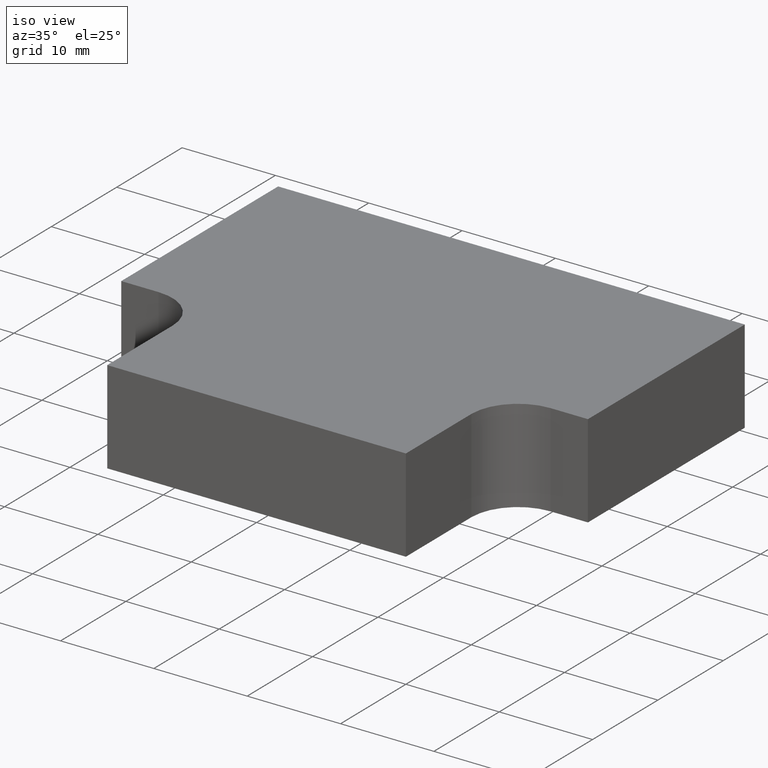
[diagram: clean part render]
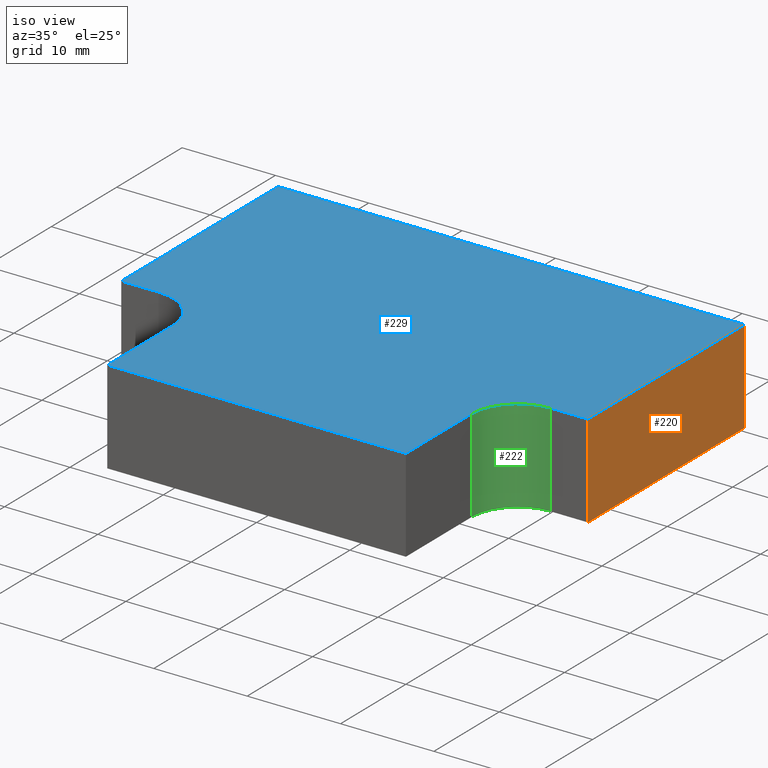
[diagram: same view with three faces highlighted in distinct colors, each labeled with its STEP entity id]
A machine part, iso view with three faces highlighted in distinct colors.
Their STEP definitions:

[orange] entity #220 — the highlighted planar face has unit normal (1, 0, 0).
#20=FACE_OUTER_BOUND('',#32,.T.);
#32=EDGE_LOOP('',(#162,#163,#164,#165));
#48=LINE('',#337,#74);
#55=LINE('',#355,#81);
#57=LINE('',#359,#83);
#58=LINE('',#360,#84);
#74=VECTOR('',#275,10.);
#81=VECTOR('',#288,10.);
#83=VECTOR('',#292,10.);
#84=VECTOR('',#293,10.);
#100=VERTEX_POINT('',#334);
#101=VERTEX_POINT('',#336);
#109=VERTEX_POINT('',#353);
#110=VERTEX_POINT('',#358);
#120=EDGE_CURVE('',#101,#100,#48,.T.);
#129=EDGE_CURVE('',#109,#100,#55,.T.);
#131=EDGE_CURVE('',#109,#110,#57,.T.);
#132=EDGE_CURVE('',#110,#101,#58,.T.);
#162=ORIENTED_EDGE('',*,*,#131,.T.);
#163=ORIENTED_EDGE('',*,*,#132,.T.);
#164=ORIENTED_EDGE('',*,*,#120,.T.);
#165=ORIENTED_EDGE('',*,*,#129,.F.);
#210=PLANE('',#257);
#220=ADVANCED_FACE('',(#20),#210,.T.);
#257=AXIS2_PLACEMENT_3D('',#357,#290,#291);
#275=DIRECTION('',(0.,1.,0.));
#288=DIRECTION('',(0.,0.,-1.));
#290=DIRECTION('center_axis',(1.,0.,0.));
#291=DIRECTION('ref_axis',(0.,0.,-1.));
#292=DIRECTION('',(0.,-1.,0.));
#293=DIRECTION('',(0.,0.,-1.));
#334=CARTESIAN_POINT('',(25.,39.,-5.));
#336=CARTESIAN_POINT('',(25.,15.,-5.));
#337=CARTESIAN_POINT('',(25.,39.,-5.));
#353=CARTESIAN_POINT('',(25.,39.,5.));
#355=CARTESIAN_POINT('',(25.,39.,0.));
#357=CARTESIAN_POINT('Origin',(25.,39.,0.));
#358=CARTESIAN_POINT('',(25.,15.,5.));
#359=CARTESIAN_POINT('',(25.,39.,5.));
#360=CARTESIAN_POINT('',(25.,15.,0.));

[blue] entity #229 — the highlighted planar face has unit normal (0, 0, 1).
#29=FACE_OUTER_BOUND('',#41,.T.);
#41=EDGE_LOOP('',(#198,#199,#200,#201,#202,#203,#204,#205,#206,#207));
#44=CIRCLE('',#260,5.);
#45=CIRCLE('',#265,5.);
#54=LINE('',#354,#80);
#57=LINE('',#359,#83);
#59=LINE('',#363,#85);
#62=LINE('',#371,#88);
#64=LINE('',#375,#90);
#66=LINE('',#379,#92);
#69=LINE('',#387,#95);
#71=LINE('',#390,#97);
#80=VECTOR('',#287,10.);
#83=VECTOR('',#292,10.);
#85=VECTOR('',#296,10.);
#88=VECTOR('',#305,10.);
#90=VECTOR('',#309,10.);
#92=VECTOR('',#313,10.);
#95=VECTOR('',#322,10.);
#97=VECTOR('',#326,10.);
#108=VERTEX_POINT('',#352);
#109=VERTEX_POINT('',#353);
#110=VERTEX_POINT('',#358);
#111=VERTEX_POINT('',#362);
#112=VERTEX_POINT('',#366);
#113=VERTEX_POINT('',#370);
#114=VERTEX_POINT('',#374);
#115=VERTEX_POINT('',#378);
#116=VERTEX_POINT('',#382);
#117=VERTEX_POINT('',#386);
#128=EDGE_CURVE('',#108,#109,#54,.T.);
#131=EDGE_CURVE('',#109,#110,#57,.T.);
#133=EDGE_CURVE('',#110,#111,#59,.T.);
#135=EDGE_CURVE('',#111,#112,#44,.T.);
#137=EDGE_CURVE('',#112,#113,#62,.T.);
#139=EDGE_CURVE('',#113,#114,#64,.T.);
#141=EDGE_CURVE('',#114,#115,#66,.T.);
#143=EDGE_CURVE('',#115,#116,#45,.T.);
#145=EDGE_CURVE('',#116,#117,#69,.T.);
#147=EDGE_CURVE('',#117,#108,#71,.T.);
#198=ORIENTED_EDGE('',*,*,#128,.F.);
#199=ORIENTED_EDGE('',*,*,#147,.F.);
#200=ORIENTED_EDGE('',*,*,#145,.F.);
#201=ORIENTED_EDGE('',*,*,#143,.F.);
#202=ORIENTED_EDGE('',*,*,#141,.F.);
#203=ORIENTED_EDGE('',*,*,#139,.F.);
#204=ORIENTED_EDGE('',*,*,#137,.F.);
#205=ORIENTED_EDGE('',*,*,#135,.F.);
#206=ORIENTED_EDGE('',*,*,#133,.F.);
#207=ORIENTED_EDGE('',*,*,#131,.F.);
#217=PLANE('',#268);
#229=ADVANCED_FACE('',(#29),#217,.T.);
#260=AXIS2_PLACEMENT_3D('',#367,#300,#301);
#265=AXIS2_PLACEMENT_3D('',#383,#317,#318);
#268=AXIS2_PLACEMENT_3D('',#391,#327,#328);
#287=DIRECTION('',(1.,1.77635683940025E-16,0.));
#292=DIRECTION('',(0.,-1.,0.));
#296=DIRECTION('',(-1.,0.,0.));
#300=DIRECTION('center_axis',(0.,0.,1.));
#301=DIRECTION('ref_axis',(-8.88178419700125E-16,1.,0.));
#305=DIRECTION('',(-2.22044604925031E-16,-1.,0.));
#309=DIRECTION('',(-1.,-1.22464679914735E-16,0.));
#313=DIRECTION('',(-2.22044604925031E-16,1.,0.));
#317=DIRECTION('center_axis',(0.,0.,1.));
#318=DIRECTION('ref_axis',(1.,2.22044604925031E-16,0.));
#322=DIRECTION('',(-1.,0.,0.));
#326=DIRECTION('',(0.,1.,0.));
#327=DIRECTION('center_axis',(0.,0.,1.));
#328=DIRECTION('ref_axis',(1.,0.,0.));
#352=CARTESIAN_POINT('',(-25.,39.,5.));
#353=CARTESIAN_POINT('',(25.,39.,5.));
#354=CARTESIAN_POINT('',(0.,39.,5.));
#358=CARTESIAN_POINT('',(25.,15.,5.));
#359=CARTESIAN_POINT('',(25.,39.,5.));
#362=CARTESIAN_POINT('',(21.,15.,5.));
#363=CARTESIAN_POINT('',(25.,15.,5.));
#366=CARTESIAN_POINT('',(16.,10.,5.));
#367=CARTESIAN_POINT('Origin',(21.,10.,5.));
#370=CARTESIAN_POINT('',(16.,-9.97995764079477E-16,5.));
#371=CARTESIAN_POINT('',(16.,10.,5.));
#374=CARTESIAN_POINT('',(-16.,-9.97995764079477E-16,5.));
#375=CARTESIAN_POINT('',(2.22044604925031E-15,9.61439114556288E-16,5.));
#378=CARTESIAN_POINT('',(-16.,10.,5.));
#379=CARTESIAN_POINT('',(-16.,-9.97995764079477E-16,5.));
#382=CARTESIAN_POINT('',(-21.,15.,5.));
#383=CARTESIAN_POINT('Origin',(-21.,10.,5.));
#386=CARTESIAN_POINT('',(-25.,15.,5.));
#387=CARTESIAN_POINT('',(-21.,15.,5.));
#390=CARTESIAN_POINT('',(-25.,15.,5.));
#391=CARTESIAN_POINT('Origin',(0.,21.1389886801068,5.));

[green] entity #222 — the highlighted cylindrical surface (partial cylindrical patch) has radius 5 mm, axis along (0, 0, 1).
#16=CYLINDRICAL_SURFACE('',#259,5.);
#22=FACE_OUTER_BOUND('',#34,.T.);
#34=EDGE_LOOP('',(#170,#171,#172,#173));
#42=CIRCLE('',#254,5.);
#44=CIRCLE('',#260,5.);
#60=LINE('',#364,#86);
#61=LINE('',#368,#87);
#86=VECTOR('',#297,10.);
#87=VECTOR('',#302,10.);
#102=VERTEX_POINT('',#338);
#103=VERTEX_POINT('',#340);
#111=VERTEX_POINT('',#362);
#112=VERTEX_POINT('',#366);
#122=EDGE_CURVE('',#103,#102,#42,.T.);
#134=EDGE_CURVE('',#111,#102,#60,.T.);
#135=EDGE_CURVE('',#111,#112,#44,.T.);
#136=EDGE_CURVE('',#112,#103,#61,.T.);
#170=ORIENTED_EDGE('',*,*,#135,.T.);
#171=ORIENTED_EDGE('',*,*,#136,.T.);
#172=ORIENTED_EDGE('',*,*,#122,.T.);
#173=ORIENTED_EDGE('',*,*,#134,.F.);
#222=ADVANCED_FACE('',(#22),#16,.F.);
#254=AXIS2_PLACEMENT_3D('',#341,#277,#278);
#259=AXIS2_PLACEMENT_3D('',#365,#298,#299);
#260=AXIS2_PLACEMENT_3D('',#367,#300,#301);
#277=DIRECTION('center_axis',(0.,0.,-1.));
#278=DIRECTION('ref_axis',(-8.88178419700125E-16,1.,0.));
#297=DIRECTION('',(0.,0.,-1.));
#298=DIRECTION('center_axis',(0.,0.,1.));
#299=DIRECTION('ref_axis',(-8.88178419700125E-16,1.,0.));
#300=DIRECTION('center_axis',(0.,0.,1.));
#301=DIRECTION('ref_axis',(-8.88178419700125E-16,1.,0.));
#302=DIRECTION('',(0.,0.,-1.));
#338=CARTESIAN_POINT('',(21.,15.,-5.));
#340=CARTESIAN_POINT('',(16.,10.,-5.));
#341=CARTESIAN_POINT('Origin',(21.,10.,-5.));
#362=CARTESIAN_POINT('',(21.,15.,5.));
#364=CARTESIAN_POINT('',(21.,15.,0.));
#365=CARTESIAN_POINT('Origin',(21.,10.,0.));
#366=CARTESIAN_POINT('',(16.,10.,5.));
#367=CARTESIAN_POINT('Origin',(21.,10.,5.));
#368=CARTESIAN_POINT('',(16.,10.,0.));